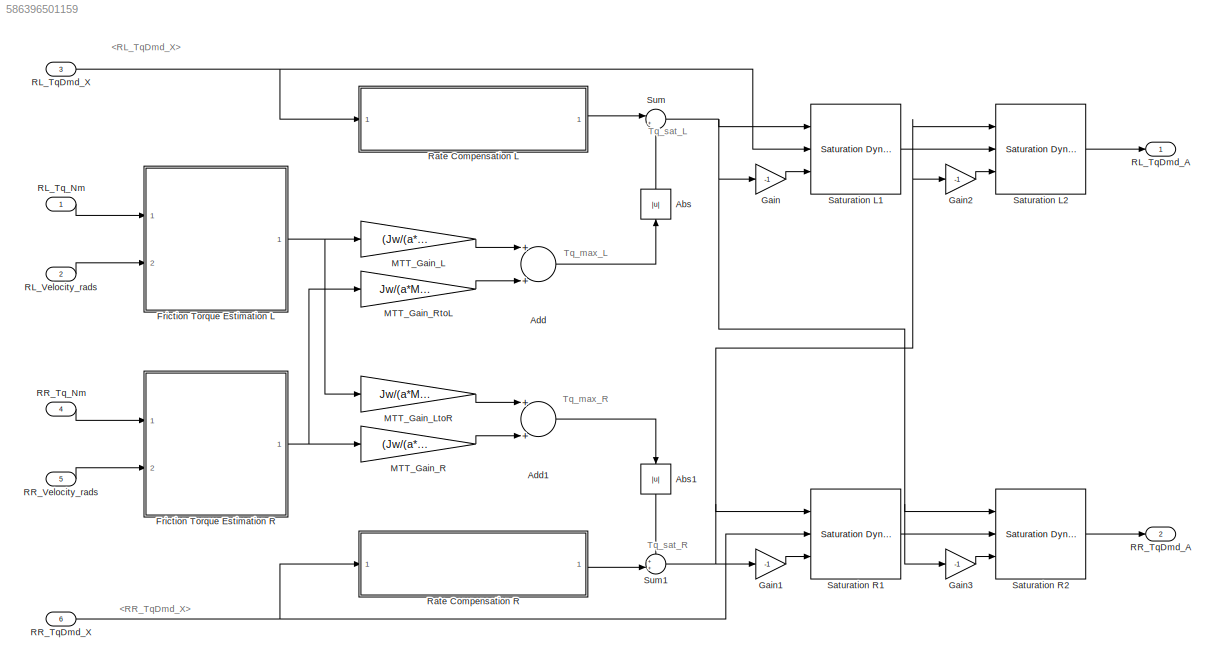
MODEL slx_586396501159
KIND model
CONFIG AbsTol = auto
CONFIG FixedStep = auto
CONFIG MaxStep = auto
CONFIG MinStep = auto
CONFIG RelTol = 1e-3
CONFIG SampleTimeConstraint = Unconstrained
CONFIG Solver = VariableStepAuto
CONFIG SolverMode = Auto
CONFIG SolverName = VariableStepAuto
CONFIG StartTime = 0.0
CONFIG StopTime = 10.0
BLOCK [Abs] Abs
  SaturateOnIntegerOverflow = off
BLOCK [Abs] Abs1
  SaturateOnIntegerOverflow = off
BLOCK [Sum] Add
  InputSameDT = off
  OutDataTypeStr = Inherit: Inherit via internal rule
  Ports = [2, 1]
  SaturateOnIntegerOverflow = off
BLOCK [Sum] Add1
  InputSameDT = off
  OutDataTypeStr = Inherit: Inherit via internal rule
  Ports = [2, 1]
  SaturateOnIntegerOverflow = off
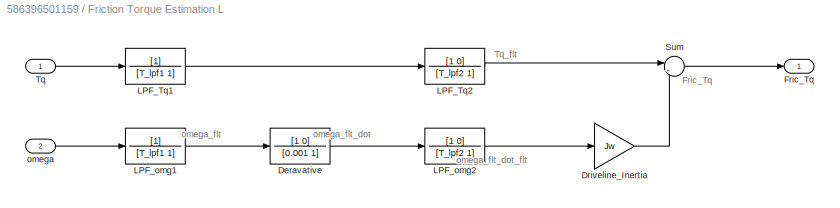
BLOCK [SubSystem] Friction Torque Estimation L
  Ports = [2, 1]
  RequestExecContextInheritance = off
  Variant = off
BLOCK [TransferFcn] Friction Torque Estimation L/Deravative
  Denominator = [0.001 1]
  Numerator = [1 0]
BLOCK [Gain] Friction Torque Estimation L/Driveline_Inertia
  Gain = Jw
  OutDataTypeStr = Inherit: Inherit via internal rule
  ParamDataTypeStr = Inherit: Inherit via internal rule
  SaturateOnIntegerOverflow = off
BLOCK [Outport] Friction Torque Estimation L/Fric_Tq
  IconDisplay = Port number
BLOCK [TransferFcn] Friction Torque Estimation L/LPF_Tq1
  Denominator = [T_lpf1 1]
BLOCK [TransferFcn] Friction Torque Estimation L/LPF_Tq2
  Denominator = [T_lpf2 1]
  Numerator = [1 0]
BLOCK [TransferFcn] Friction Torque Estimation L/LPF_omg1
  Denominator = [T_lpf1 1]
BLOCK [TransferFcn] Friction Torque Estimation L/LPF_omg2
  Denominator = [T_lpf2 1]
  Numerator = [1 0]
BLOCK [Sum] Friction Torque Estimation L/Sum
  IconShape = round
  InputSameDT = off
  Inputs = |++
  OutDataTypeStr = Inherit: Inherit via internal rule
  Ports = [2, 1]
  SaturateOnIntegerOverflow = off
BLOCK [Inport] Friction Torque Estimation L/Tq
  IconDisplay = Port number
BLOCK [Inport] Friction Torque Estimation L/omega
  IconDisplay = Port number
  Port = 2
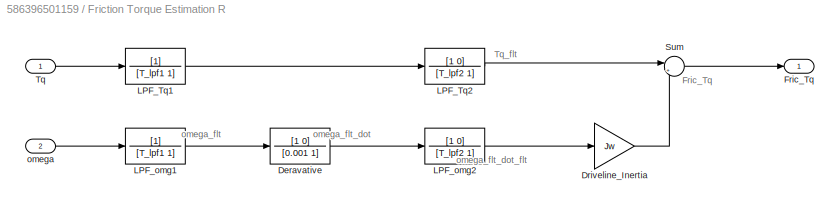
BLOCK [SubSystem] Friction Torque Estimation R
  Ports = [2, 1]
  RequestExecContextInheritance = off
  Variant = off
BLOCK [TransferFcn] Friction Torque Estimation R/Deravative
  Denominator = [0.001 1]
  Numerator = [1 0]
BLOCK [Gain] Friction Torque Estimation R/Driveline_Inertia
  Gain = Jw
  OutDataTypeStr = Inherit: Inherit via internal rule
  ParamDataTypeStr = Inherit: Inherit via internal rule
  SaturateOnIntegerOverflow = off
BLOCK [Outport] Friction Torque Estimation R/Fric_Tq
  IconDisplay = Port number
BLOCK [TransferFcn] Friction Torque Estimation R/LPF_Tq1
  Denominator = [T_lpf1 1]
BLOCK [TransferFcn] Friction Torque Estimation R/LPF_Tq2
  Denominator = [T_lpf2 1]
  Numerator = [1 0]
BLOCK [TransferFcn] Friction Torque Estimation R/LPF_omg1
  Denominator = [T_lpf1 1]
BLOCK [TransferFcn] Friction Torque Estimation R/LPF_omg2
  Denominator = [T_lpf2 1]
  Numerator = [1 0]
BLOCK [Sum] Friction Torque Estimation R/Sum
  IconShape = round
  InputSameDT = off
  Inputs = |++
  OutDataTypeStr = Inherit: Inherit via internal rule
  Ports = [2, 1]
  SaturateOnIntegerOverflow = off
BLOCK [Inport] Friction Torque Estimation R/Tq
  IconDisplay = Port number
BLOCK [Inport] Friction Torque Estimation R/omega
  IconDisplay = Port number
  Port = 2
BLOCK [Gain] Gain
  Gain = -1
  OutDataTypeStr = Inherit: Inherit via internal rule
  ParamDataTypeStr = Inherit: Inherit via internal rule
  SaturateOnIntegerOverflow = off
BLOCK [Gain] Gain1
  Gain = -1
  OutDataTypeStr = Inherit: Inherit via internal rule
  ParamDataTypeStr = Inherit: Inherit via internal rule
  SaturateOnIntegerOverflow = off
BLOCK [Gain] Gain2
  Gain = -1
  OutDataTypeStr = Inherit: Inherit via internal rule
  ParamDataTypeStr = Inherit: Inherit via internal rule
  SaturateOnIntegerOverflow = off
BLOCK [Gain] Gain3
  Gain = -1
  OutDataTypeStr = Inherit: Inherit via internal rule
  ParamDataTypeStr = Inherit: Inherit via internal rule
  SaturateOnIntegerOverflow = off
BLOCK [Gain] MTT_Gain_L
  Gain = (Jw/(a*M*r^2))+1
  OutDataTypeStr = Inherit: Inherit via internal rule
  ParamDataTypeStr = Inherit: Inherit via internal rule
  SaturateOnIntegerOverflow = off
BLOCK [Gain] MTT_Gain_LtoR
  Gain = Jw/(a*M*r^2)
  OutDataTypeStr = Inherit: Inherit via internal rule
  ParamDataTypeStr = Inherit: Inherit via internal rule
  SaturateOnIntegerOverflow = off
BLOCK [Gain] MTT_Gain_R
  Gain = (Jw/(a*M*r^2))+1
  OutDataTypeStr = Inherit: Inherit via internal rule
  ParamDataTypeStr = Inherit: Inherit via internal rule
  SaturateOnIntegerOverflow = off
BLOCK [Gain] MTT_Gain_RtoL
  Gain = Jw/(a*M*r^2)
  OutDataTypeStr = Inherit: Inherit via internal rule
  ParamDataTypeStr = Inherit: Inherit via internal rule
  SaturateOnIntegerOverflow = off
BLOCK [Outport] RL_TqDmd_A
  IconDisplay = Port number
BLOCK [Inport] RL_TqDmd_X
  IconDisplay = Port number
  Port = 3
BLOCK [Inport] RL_Tq_Nm
  IconDisplay = Port number
BLOCK [Inport] RL_Velocity_rads
  IconDisplay = Port number
  Port = 2
BLOCK [Outport] RR_TqDmd_A
  IconDisplay = Port number
  Port = 2
BLOCK [Inport] RR_TqDmd_X
  IconDisplay = Port number
  Port = 6
BLOCK [Inport] RR_Tq_Nm
  IconDisplay = Port number
  Port = 4
BLOCK [Inport] RR_Velocity_rads
  IconDisplay = Port number
  Port = 5
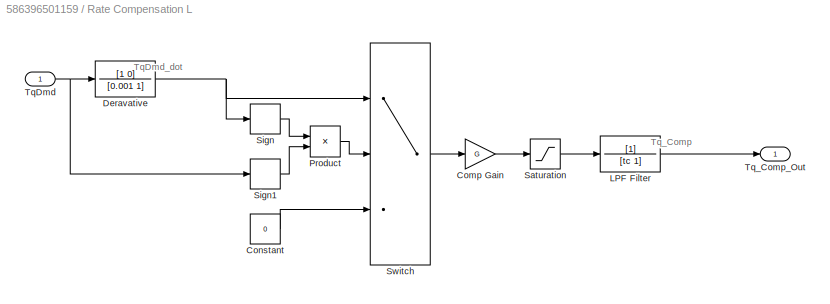
BLOCK [SubSystem] Rate Compensation L
  Ports = [1, 1]
  RequestExecContextInheritance = off
  Variant = off
BLOCK [Gain] Rate Compensation L/Comp Gain
  Gain = G
  OutDataTypeStr = Inherit: Inherit via internal rule
  ParamDataTypeStr = Inherit: Inherit via internal rule
  SaturateOnIntegerOverflow = off
BLOCK [Constant] Rate Compensation L/Constant
  Value = 0
BLOCK [TransferFcn] Rate Compensation L/Deravative
  Denominator = [0.001 1]
  Numerator = [1 0]
BLOCK [TransferFcn] Rate Compensation L/LPF Filter
  Denominator = [tc 1]
BLOCK [Product] Rate Compensation L/Product
  InputSameDT = off
  OutDataTypeStr = Inherit: Inherit via internal rule
  Ports = [2, 1]
  RndMeth = Floor
  SaturateOnIntegerOverflow = off
BLOCK [Saturate] Rate Compensation L/Saturation
  InputPortMap = u0
  LowerLimit = 0
  Ports = [1, 1]
  UpperLimit = 500
BLOCK [Signum] Rate Compensation L/Sign
BLOCK [Signum] Rate Compensation L/Sign1
BLOCK [Switch] Rate Compensation L/Switch
  Criteria = u2 ~= 0
  InputSameDT = off
  SaturateOnIntegerOverflow = off
BLOCK [Inport] Rate Compensation L/TqDmd
  IconDisplay = Port number
BLOCK [Outport] Rate Compensation L/Tq_Comp_Out
  IconDisplay = Port number
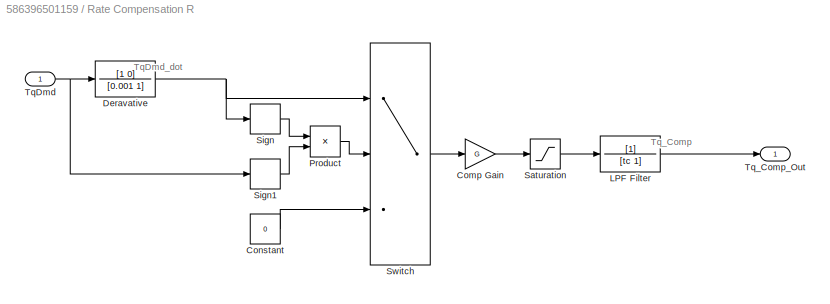
BLOCK [SubSystem] Rate Compensation R
  Ports = [1, 1]
  RequestExecContextInheritance = off
  Variant = off
BLOCK [Gain] Rate Compensation R/Comp Gain
  Gain = G
  OutDataTypeStr = Inherit: Inherit via internal rule
  ParamDataTypeStr = Inherit: Inherit via internal rule
  SaturateOnIntegerOverflow = off
BLOCK [Constant] Rate Compensation R/Constant
  Value = 0
BLOCK [TransferFcn] Rate Compensation R/Deravative
  Denominator = [0.001 1]
  Numerator = [1 0]
BLOCK [TransferFcn] Rate Compensation R/LPF Filter
  Denominator = [tc 1]
BLOCK [Product] Rate Compensation R/Product
  InputSameDT = off
  OutDataTypeStr = Inherit: Inherit via internal rule
  Ports = [2, 1]
  RndMeth = Floor
  SaturateOnIntegerOverflow = off
BLOCK [Saturate] Rate Compensation R/Saturation
  InputPortMap = u0
  LowerLimit = 0
  Ports = [1, 1]
  UpperLimit = 500
BLOCK [Signum] Rate Compensation R/Sign
BLOCK [Signum] Rate Compensation R/Sign1
BLOCK [Switch] Rate Compensation R/Switch
  Criteria = u2 ~= 0
  InputSameDT = off
  SaturateOnIntegerOverflow = off
BLOCK [Inport] Rate Compensation R/TqDmd
  IconDisplay = Port number
BLOCK [Outport] Rate Compensation R/Tq_Comp_Out
  IconDisplay = Port number
BLOCK [Reference] Saturation L1  REF=simulink/Discontinuities/Saturation
Dynamic
  Ports = [3, 1]
  SourceBlock = simulink/Discontinuities/Saturation\nDynamic
  SourceType = Saturation Dynamic
BLOCK [Reference] Saturation L2  REF=simulink/Discontinuities/Saturation
Dynamic
  Ports = [3, 1]
  SourceBlock = simulink/Discontinuities/Saturation\nDynamic
  SourceType = Saturation Dynamic
BLOCK [Reference] Saturation R1  REF=simulink/Discontinuities/Saturation
Dynamic
  Ports = [3, 1]
  SourceBlock = simulink/Discontinuities/Saturation\nDynamic
  SourceType = Saturation Dynamic
BLOCK [Reference] Saturation R2  REF=simulink/Discontinuities/Saturation
Dynamic
  Ports = [3, 1]
  SourceBlock = simulink/Discontinuities/Saturation\nDynamic
  SourceType = Saturation Dynamic
BLOCK [Sum] Sum
  IconShape = round
  InputSameDT = off
  Inputs = |++
  OutDataTypeStr = Inherit: Inherit via internal rule
  Ports = [2, 1]
  SaturateOnIntegerOverflow = off
BLOCK [Sum] Sum1
  IconShape = round
  InputSameDT = off
  Inputs = ++|
  OutDataTypeStr = Inherit: Inherit via internal rule
  Ports = [2, 1]
  SaturateOnIntegerOverflow = off
ANNOTATION (root): Tq_max_L
ANNOTATION (root): Tq_max_R
ANNOTATION (root): Tq_sat_L
ANNOTATION (root): Tq_sat_R
ANNOTATION Friction Torque Estimation L: Fric_Tq
ANNOTATION Friction Torque Estimation L: Tq_flt
ANNOTATION Friction Torque Estimation L: omega_flt
ANNOTATION Friction Torque Estimation L: omega_flt_dot
ANNOTATION Friction Torque Estimation L: omega_flt_dot_flt
ANNOTATION Friction Torque Estimation R: Fric_Tq
ANNOTATION Friction Torque Estimation R: Tq_flt
ANNOTATION Friction Torque Estimation R: omega_flt
ANNOTATION Friction Torque Estimation R: omega_flt_dot
ANNOTATION Friction Torque Estimation R: omega_flt_dot_flt
ANNOTATION Rate Compensation L: TqDmd_dot
ANNOTATION Rate Compensation L: Tq_Comp
ANNOTATION Rate Compensation R: TqDmd_dot
ANNOTATION Rate Compensation R: Tq_Comp
LINE Abs1:1 -> Sum1:1
LINE Abs:1 -> Sum:2
LINE Add1:1 -> Abs1:1
LINE Add:1 -> Abs:1
LINE Friction Torque Estimation L/Deravative:1 -> Friction Torque Estimation L/LPF_omg2:1
LINE Friction Torque Estimation L/Driveline_Inertia:1 -> Friction Torque Estimation L/Sum:2
LINE Friction Torque Estimation L/LPF_Tq1:1 -> Friction Torque Estimation L/LPF_Tq2:1
LINE Friction Torque Estimation L/LPF_Tq2:1 -> Friction Torque Estimation L/Sum:1
LINE Friction Torque Estimation L/LPF_omg1:1 -> Friction Torque Estimation L/Deravative:1
LINE Friction Torque Estimation L/LPF_omg2:1 -> Friction Torque Estimation L/Driveline_Inertia:1
LINE Friction Torque Estimation L/Sum:1 -> Friction Torque Estimation L/Fric_Tq:1
LINE Friction Torque Estimation L/Tq:1 -> Friction Torque Estimation L/LPF_Tq1:1
LINE Friction Torque Estimation L/omega:1 -> Friction Torque Estimation L/LPF_omg1:1
NET Friction Torque Estimation L:1 -> MTT_Gain_L:1, MTT_Gain_LtoR:1
LINE Friction Torque Estimation R/Deravative:1 -> Friction Torque Estimation R/LPF_omg2:1
LINE Friction Torque Estimation R/Driveline_Inertia:1 -> Friction Torque Estimation R/Sum:2
LINE Friction Torque Estimation R/LPF_Tq1:1 -> Friction Torque Estimation R/LPF_Tq2:1
LINE Friction Torque Estimation R/LPF_Tq2:1 -> Friction Torque Estimation R/Sum:1
LINE Friction Torque Estimation R/LPF_omg1:1 -> Friction Torque Estimation R/Deravative:1
LINE Friction Torque Estimation R/LPF_omg2:1 -> Friction Torque Estimation R/Driveline_Inertia:1
LINE Friction Torque Estimation R/Sum:1 -> Friction Torque Estimation R/Fric_Tq:1
LINE Friction Torque Estimation R/Tq:1 -> Friction Torque Estimation R/LPF_Tq1:1
LINE Friction Torque Estimation R/omega:1 -> Friction Torque Estimation R/LPF_omg1:1
NET Friction Torque Estimation R:1 -> MTT_Gain_R:1, MTT_Gain_RtoL:1
LINE Gain1:1 -> Saturation R1:3
LINE Gain2:1 -> Saturation L2:3
LINE Gain3:1 -> Saturation R2:3
LINE Gain:1 -> Saturation L1:3
LINE MTT_Gain_L:1 -> Add:1
LINE MTT_Gain_LtoR:1 -> Add1:1
LINE MTT_Gain_R:1 -> Add1:2
LINE MTT_Gain_RtoL:1 -> Add:2
NET RL_TqDmd_X:1 -> Rate Compensation L:1, Saturation L1:2
LINE RL_Tq_Nm:1 -> Friction Torque Estimation L:1
LINE RL_Velocity_rads:1 -> Friction Torque Estimation L:2
NET RR_TqDmd_X:1 -> Rate Compensation R:1, Saturation R1:2
LINE RR_Tq_Nm:1 -> Friction Torque Estimation R:1
LINE RR_Velocity_rads:1 -> Friction Torque Estimation R:2
LINE Rate Compensation L/Comp Gain:1 -> Rate Compensation L/Saturation:1
LINE Rate Compensation L/Constant:1 -> Rate Compensation L/Switch:3
NET Rate Compensation L/Deravative:1 -> Rate Compensation L/Sign:1, Rate Compensation L/Switch:1
LINE Rate Compensation L/LPF Filter:1 -> Rate Compensation L/Tq_Comp_Out:1
LINE Rate Compensation L/Product:1 -> Rate Compensation L/Switch:2
LINE Rate Compensation L/Saturation:1 -> Rate Compensation L/LPF Filter:1
LINE Rate Compensation L/Sign1:1 -> Rate Compensation L/Product:2
LINE Rate Compensation L/Sign:1 -> Rate Compensation L/Product:1
LINE Rate Compensation L/Switch:1 -> Rate Compensation L/Comp Gain:1
NET Rate Compensation L/TqDmd:1 -> Rate Compensation L/Deravative:1, Rate Compensation L/Sign1:1
LINE Rate Compensation L:1 -> Sum:1
LINE Rate Compensation R/Comp Gain:1 -> Rate Compensation R/Saturation:1
LINE Rate Compensation R/Constant:1 -> Rate Compensation R/Switch:3
NET Rate Compensation R/Deravative:1 -> Rate Compensation R/Sign:1, Rate Compensation R/Switch:1
LINE Rate Compensation R/LPF Filter:1 -> Rate Compensation R/Tq_Comp_Out:1
LINE Rate Compensation R/Product:1 -> Rate Compensation R/Switch:2
LINE Rate Compensation R/Saturation:1 -> Rate Compensation R/LPF Filter:1
LINE Rate Compensation R/Sign1:1 -> Rate Compensation R/Product:2
LINE Rate Compensation R/Sign:1 -> Rate Compensation R/Product:1
LINE Rate Compensation R/Switch:1 -> Rate Compensation R/Comp Gain:1
NET Rate Compensation R/TqDmd:1 -> Rate Compensation R/Deravative:1, Rate Compensation R/Sign1:1
LINE Rate Compensation R:1 -> Sum1:2
LINE Saturation L1:1 -> Saturation L2:2
LINE Saturation L2:1 -> RL_TqDmd_A:1
LINE Saturation R1:1 -> Saturation R2:2
LINE Saturation R2:1 -> RR_TqDmd_A:1
NET Sum1:1 -> Gain1:1, Gain2:1, Saturation L2:1, Saturation R1:1
NET Sum:1 -> Gain3:1, Gain:1, Saturation L1:1, Saturation R2:1
note: NET lines group one-source signal fan-out (src -> all destinations, sorted); 1:1 wires keep LINE
